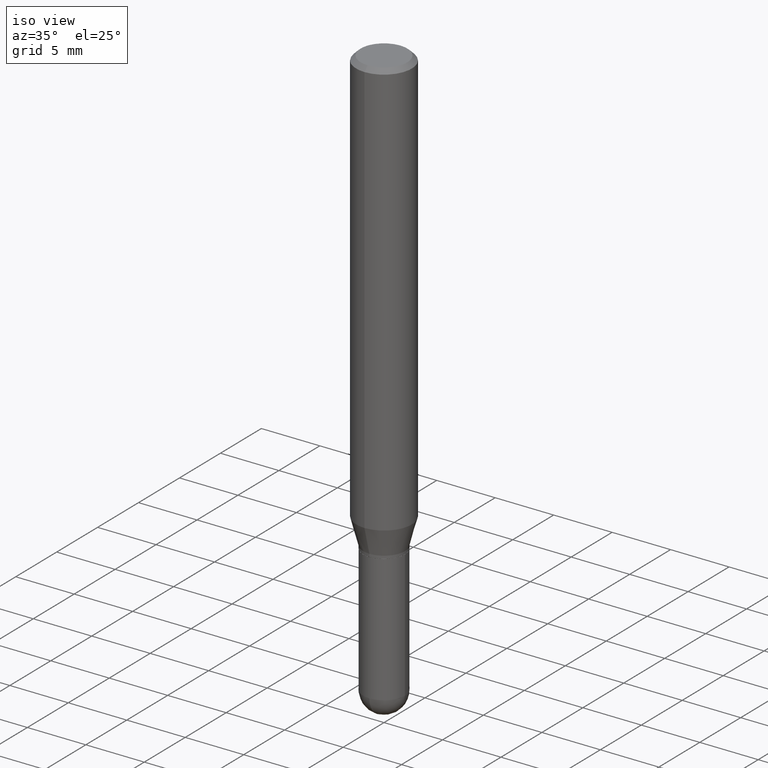
[diagram: clean part render]
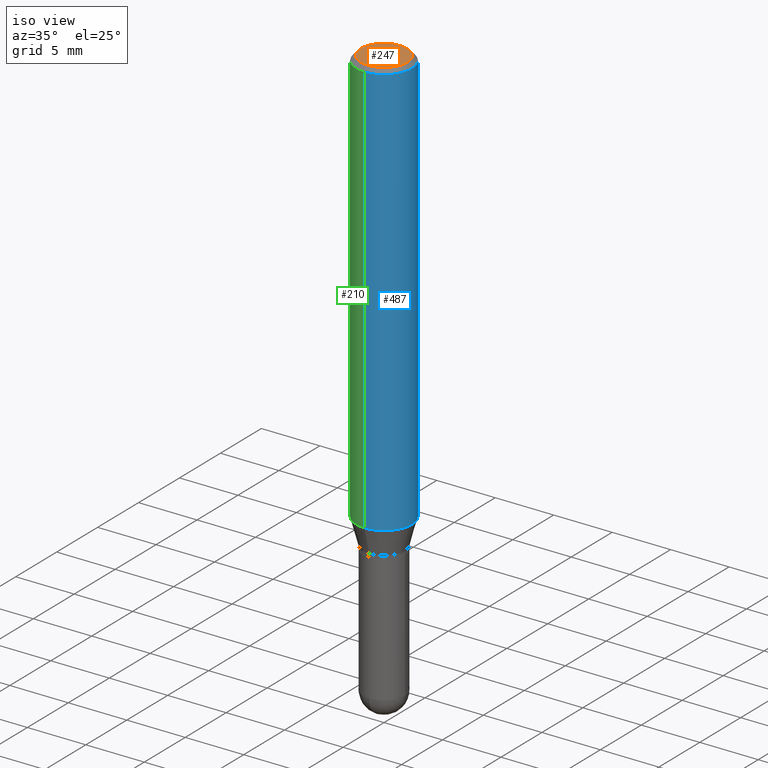
[diagram: same view with three faces highlighted in distinct colors, each labeled with its STEP entity id]
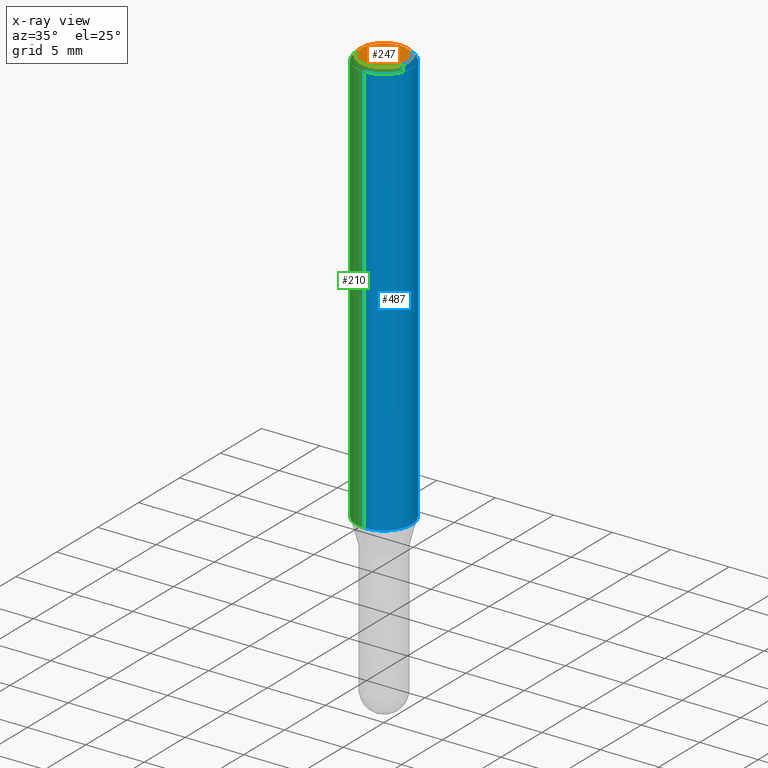
[diagram: x-ray of the same camera — body ghosted, the three highlighted faces saturated]
A machine part, iso view with three faces highlighted in distinct colors.
The next image is the same camera in x-ray (body ghosted, the three faces saturated) — at least one of them is partly hidden behind the body in this view.
Their STEP definitions:

[orange] entity #247 — the highlighted planar face has unit normal (0, -0, -1).
#33 = ORIENTED_EDGE ( 'NONE', *, *, #353, .T. ) ;
#36 = ORIENTED_EDGE ( 'NONE', *, *, #507, .T. ) ;
#57 = CARTESIAN_POINT ( 'NONE',  ( 6.022805309504406221E-16, 0.07875000000000001443, -2.531073514825954590E-16 ) ) ;
#96 = CIRCLE ( 'NONE', #143, 0.07875000000000001443 ) ;
#119 = DIRECTION ( 'NONE',  ( -6.982962677686264344E-15, -1.000000000000000000, 3.492120384654201209E-15 ) ) ;
#128 = CIRCLE ( 'NONE', #231, 0.07875000000000001443 ) ;
#129 = VERTEX_POINT ( 'NONE', #57 ) ;
#130 = VERTEX_POINT ( 'NONE', #462 ) ;
#143 = AXIS2_PLACEMENT_3D ( 'NONE', #369, #201, #119 ) ;
#195 = FACE_OUTER_BOUND ( 'NONE', #509, .T. ) ;
#201 = DIRECTION ( 'NONE',  ( -2.445022562880343100E-29, 3.492120384654201603E-15, 1.000000000000000000 ) ) ;
#230 = DIRECTION ( 'NONE',  ( -2.445022562880343100E-29, 3.492120384654201603E-15, 1.000000000000000000 ) ) ;
#231 = AXIS2_PLACEMENT_3D ( 'NONE', #347, #230, #424 ) ;
#247 = ADVANCED_FACE ( 'NONE', ( #195 ), #433, .F. ) ;
#308 = DIRECTION ( 'NONE',  ( 6.982962677686265922E-15, 1.000000000000000000, -3.492120384654201603E-15 ) ) ;
#347 = CARTESIAN_POINT ( 'NONE',  ( -5.353897400011380051E-46, 7.646740987903862261E-32, 2.189712880892295595E-17 ) ) ;
#353 = EDGE_CURVE ( 'NONE', #130, #129, #128, .T. ) ;
#369 = CARTESIAN_POINT ( 'NONE',  ( -5.353897400011380051E-46, 7.646740987903862261E-32, 2.189712880892295595E-17 ) ) ;
#388 = DIRECTION ( 'NONE',  ( 2.445022562880342820E-29, -3.492120384654201603E-15, -1.000000000000000000 ) ) ;
#394 = CARTESIAN_POINT ( 'NONE',  ( 5.499083108677934443E-16, 0.07875000000000001443, -2.640559158870569216E-16 ) ) ;
#424 = DIRECTION ( 'NONE',  ( -6.982962677686264344E-15, -1.000000000000000000, 3.492120384654201209E-15 ) ) ;
#433 = PLANE ( 'NONE',  #495 ) ;
#462 = CARTESIAN_POINT ( 'NONE',  ( -5.917179523077944868E-16, -0.07875000000000001443, 2.969016091004413093E-16 ) ) ;
#495 = AXIS2_PLACEMENT_3D ( 'NONE', #394, #388, #308 ) ;
#507 = EDGE_CURVE ( 'NONE', #129, #130, #96, .T. ) ;
#509 = EDGE_LOOP ( 'NONE', ( #36, #33 ) ) ;

[blue] entity #487 — the highlighted cylindrical surface (edge-blend (fillet) strip) has radius 2.3813 mm, axis along (-0, 0, 1).
#34 = DIRECTION ( 'NONE',  ( -6.982962677686265922E-15, -1.000000000000000000, 3.483106191921935160E-15 ) ) ;
#52 = LINE ( 'NONE', #163, #70 ) ;
#70 = VECTOR ( 'NONE', #435, 39.37007874015748143 ) ;
#87 = DIRECTION ( 'NONE',  ( -6.982962677686265922E-15, -1.000000000000000000, 3.492120384654201603E-15 ) ) ;
#93 = VERTEX_POINT ( 'NONE', #100 ) ;
#100 = CARTESIAN_POINT ( 'NONE',  ( -6.546527510330871097E-16, -0.09375000000000005551, -0.01499999999999965250 ) ) ;
#101 = VERTEX_POINT ( 'NONE', #262 ) ;
#114 = DIRECTION ( 'NONE',  ( -2.445022562880342820E-29, 3.492120384654201603E-15, 1.000000000000000000 ) ) ;
#122 = VERTEX_POINT ( 'NONE', #254 ) ;
#123 = ORIENTED_EDGE ( 'NONE', *, *, #304, .F. ) ;
#151 = DIRECTION ( 'NONE',  ( -6.982962677686265922E-15, -1.000000000000000000, 2.913971193241880372E-15 ) ) ;
#154 = CARTESIAN_POINT ( 'NONE',  ( 6.661338147750938256E-16, 0.09375000000000001388, -3.273862860613314496E-16 ) ) ;
#163 = CARTESIAN_POINT ( 'NONE',  ( -6.546527510330875041E-16, -0.09375000000000001388, 3.273862860613314496E-16 ) ) ;
#176 = EDGE_LOOP ( 'NONE', ( #359, #371, #123, #253 ) ) ;
#189 = DIRECTION ( 'NONE',  ( -2.445022562880343100E-29, 3.492120384654201603E-15, 1.000000000000000000 ) ) ;
#197 = LINE ( 'NONE', #154, #401 ) ;
#235 = CARTESIAN_POINT ( 'NONE',  ( 0.000000000000000000, 0.000000000000000000, 0.000000000000000000 ) ) ;
#236 = AXIS2_PLACEMENT_3D ( 'NONE', #425, #505, #151 ) ;
#243 = CIRCLE ( 'NONE', #236, 0.09375000000000001388 ) ;
#253 = ORIENTED_EDGE ( 'NONE', *, *, #469, .F. ) ;
#254 = CARTESIAN_POINT ( 'NONE',  ( -6.546527510330530901E-16, -0.09375000000000488498, -1.402483408562508638 ) ) ;
#262 = CARTESIAN_POINT ( 'NONE',  ( 6.661338147751283383E-16, 0.09374999999999512890, -1.402483408562509304 ) ) ;
#268 = CARTESIAN_POINT ( 'NONE',  ( 3.667533844320509501E-31, -5.238180576981294836E-17, -0.01499999999999997863 ) ) ;
#278 = CIRCLE ( 'NONE', #349, 0.09375000000000001388 ) ;
#280 = DIRECTION ( 'NONE',  ( -2.445022562880343100E-29, 3.492120384654201603E-15, 1.000000000000000000 ) ) ;
#304 = EDGE_CURVE ( 'NONE', #93, #318, #278, .T. ) ;
#318 = VERTEX_POINT ( 'NONE', #348 ) ;
#348 = CARTESIAN_POINT ( 'NONE',  ( 6.661338147751283383E-16, 0.09374999999999994449, -0.01500000000000030476 ) ) ;
#349 = AXIS2_PLACEMENT_3D ( 'NONE', #268, #189, #34 ) ;
#358 = FACE_OUTER_BOUND ( 'NONE', #176, .T. ) ;
#359 = ORIENTED_EDGE ( 'NONE', *, *, #360, .T. ) ;
#360 = EDGE_CURVE ( 'NONE', #122, #101, #243, .T. ) ;
#371 = ORIENTED_EDGE ( 'NONE', *, *, #392, .T. ) ;
#381 = AXIS2_PLACEMENT_3D ( 'NONE', #235, #280, #87 ) ;
#392 = EDGE_CURVE ( 'NONE', #101, #318, #197, .T. ) ;
#399 = CYLINDRICAL_SURFACE ( 'NONE', #381, 0.09375000000000001388 ) ;
#401 = VECTOR ( 'NONE', #114, 39.37007874015748143 ) ;
#425 = CARTESIAN_POINT ( 'NONE',  ( 3.429103578000664545E-29, -4.897640900180445107E-15, -1.402483408562508860 ) ) ;
#435 = DIRECTION ( 'NONE',  ( -2.445022562880342820E-29, 3.492120384654201603E-15, 1.000000000000000000 ) ) ;
#469 = EDGE_CURVE ( 'NONE', #122, #93, #52, .T. ) ;
#487 = ADVANCED_FACE ( 'NONE', ( #358 ), #399, .T. ) ;
#505 = DIRECTION ( 'NONE',  ( -2.445022562880343100E-29, 3.492120384654201603E-15, 1.000000000000000000 ) ) ;

[green] entity #210 — the highlighted cylindrical surface (edge-blend (fillet) strip) has radius 2.3813 mm, axis along (-0, 0, 1).
#19 = DIRECTION ( 'NONE',  ( -6.982962677686265922E-15, -1.000000000000000000, 3.492120384654201603E-15 ) ) ;
#52 = LINE ( 'NONE', #163, #70 ) ;
#70 = VECTOR ( 'NONE', #435, 39.37007874015748143 ) ;
#93 = VERTEX_POINT ( 'NONE', #100 ) ;
#100 = CARTESIAN_POINT ( 'NONE',  ( -6.546527510330871097E-16, -0.09375000000000005551, -0.01499999999999965250 ) ) ;
#101 = VERTEX_POINT ( 'NONE', #262 ) ;
#102 = FACE_OUTER_BOUND ( 'NONE', #370, .T. ) ;
#108 = DIRECTION ( 'NONE',  ( -2.445022562880343100E-29, 3.492120384654201603E-15, 1.000000000000000000 ) ) ;
#110 = DIRECTION ( 'NONE',  ( -6.982962677686265922E-15, -1.000000000000000000, 2.913971193241880372E-15 ) ) ;
#114 = DIRECTION ( 'NONE',  ( -2.445022562880342820E-29, 3.492120384654201603E-15, 1.000000000000000000 ) ) ;
#122 = VERTEX_POINT ( 'NONE', #254 ) ;
#145 = ORIENTED_EDGE ( 'NONE', *, *, #376, .F. ) ;
#154 = CARTESIAN_POINT ( 'NONE',  ( 6.661338147750938256E-16, 0.09375000000000001388, -3.273862860613314496E-16 ) ) ;
#159 = AXIS2_PLACEMENT_3D ( 'NONE', #257, #260, #19 ) ;
#163 = CARTESIAN_POINT ( 'NONE',  ( -6.546527510330875041E-16, -0.09375000000000001388, 3.273862860613314496E-16 ) ) ;
#183 = CIRCLE ( 'NONE', #252, 0.09375000000000001388 ) ;
#190 = CARTESIAN_POINT ( 'NONE',  ( 3.667533844320509501E-31, -5.238180576981294836E-17, -0.01499999999999997863 ) ) ;
#197 = LINE ( 'NONE', #154, #401 ) ;
#210 = ADVANCED_FACE ( 'NONE', ( #102 ), #464, .T. ) ;
#233 = DIRECTION ( 'NONE',  ( -2.445022562880343100E-29, 3.492120384654201603E-15, 1.000000000000000000 ) ) ;
#252 = AXIS2_PLACEMENT_3D ( 'NONE', #468, #108, #110 ) ;
#254 = CARTESIAN_POINT ( 'NONE',  ( -6.546527510330530901E-16, -0.09375000000000488498, -1.402483408562508638 ) ) ;
#257 = CARTESIAN_POINT ( 'NONE',  ( 0.000000000000000000, 0.000000000000000000, 0.000000000000000000 ) ) ;
#260 = DIRECTION ( 'NONE',  ( -2.445022562880343100E-29, 3.492120384654201603E-15, 1.000000000000000000 ) ) ;
#262 = CARTESIAN_POINT ( 'NONE',  ( 6.661338147751283383E-16, 0.09374999999999512890, -1.402483408562509304 ) ) ;
#284 = AXIS2_PLACEMENT_3D ( 'NONE', #190, #233, #393 ) ;
#318 = VERTEX_POINT ( 'NONE', #348 ) ;
#323 = ORIENTED_EDGE ( 'NONE', *, *, #469, .T. ) ;
#348 = CARTESIAN_POINT ( 'NONE',  ( 6.661338147751283383E-16, 0.09374999999999994449, -0.01500000000000030476 ) ) ;
#362 = CIRCLE ( 'NONE', #284, 0.09375000000000001388 ) ;
#370 = EDGE_LOOP ( 'NONE', ( #448, #378, #323, #145 ) ) ;
#376 = EDGE_CURVE ( 'NONE', #318, #93, #362, .T. ) ;
#378 = ORIENTED_EDGE ( 'NONE', *, *, #410, .T. ) ;
#392 = EDGE_CURVE ( 'NONE', #101, #318, #197, .T. ) ;
#393 = DIRECTION ( 'NONE',  ( -6.982962677686265922E-15, -1.000000000000000000, 3.483106191921935160E-15 ) ) ;
#401 = VECTOR ( 'NONE', #114, 39.37007874015748143 ) ;
#410 = EDGE_CURVE ( 'NONE', #101, #122, #183, .T. ) ;
#435 = DIRECTION ( 'NONE',  ( -2.445022562880342820E-29, 3.492120384654201603E-15, 1.000000000000000000 ) ) ;
#448 = ORIENTED_EDGE ( 'NONE', *, *, #392, .F. ) ;
#464 = CYLINDRICAL_SURFACE ( 'NONE', #159, 0.09375000000000001388 ) ;
#468 = CARTESIAN_POINT ( 'NONE',  ( 3.429103578000664545E-29, -4.897640900180445107E-15, -1.402483408562508860 ) ) ;
#469 = EDGE_CURVE ( 'NONE', #122, #93, #52, .T. ) ;